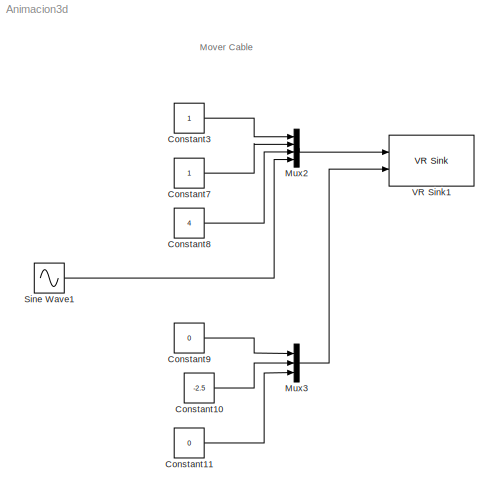
MODEL Animacion3d
KIND model
BLOCK [Constant] Constant10
  SID = 17
  Value = -2.5
BLOCK [Constant] Constant11
  SID = 18
  Value = 0
BLOCK [Constant] Constant3
  SID = 13
BLOCK [Constant] Constant7
  SID = 14
BLOCK [Constant] Constant8
  SID = 15
  Value = 4
BLOCK [Constant] Constant9
  SID = 16
  Value = 0
BLOCK [Mux] Mux2
  DisplayOption = bar
  Ports = [4, 1]
  SID = 19
BLOCK [Mux] Mux3
  DisplayOption = bar
  Inputs = 3
  Ports = [3, 1]
  SID = 20
BLOCK [Sin] Sine Wave1
  Amplitude = 10
  Frequency = 0.1
  Ports = [0, 1]
  SID = 21
  SampleTime = 0
BLOCK [Reference] VR Sink1  REF=vrlib/VR Sink
  AllowVariableSize = off
  AutoView = off
  FieldsWritten = wire.rotation.4.1.1.double#wire.translation.3.1.1.double
  Ports = [2]
  RemoteChange = off
  RemoteView = off
  SID = 23
  SampleTime = 0.1
  SourceBlock = vrlib/VR Sink
  SourceType = Virtual Reality Sink
  VideoDimensions = []
  ViewEnable = on
  WorldFileName = pendulo.wrl
ANNOTATION (root): Mover Cable
LINE Constant10:1 -> Mux3:2
LINE Constant11:1 -> Mux3:3
LINE Constant3:1 -> Mux2:1
LINE Constant7:1 -> Mux2:2
LINE Constant8:1 -> Mux2:3
LINE Constant9:1 -> Mux3:1
LINE Mux2:1 -> VR Sink1:1
LINE Mux3:1 -> VR Sink1:2
LINE Sine Wave1:1 -> Mux2:4
